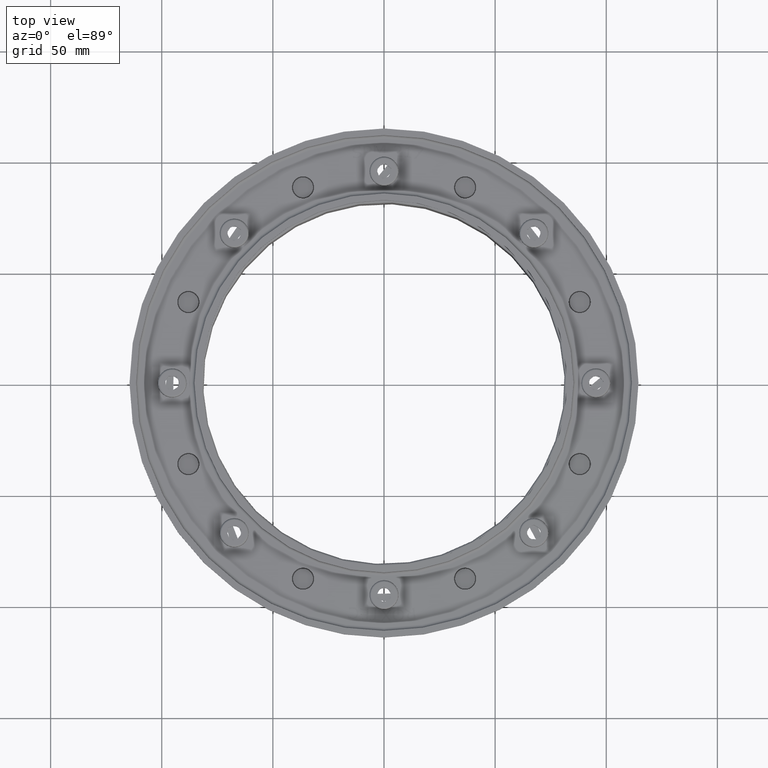
[diagram: clean part render]
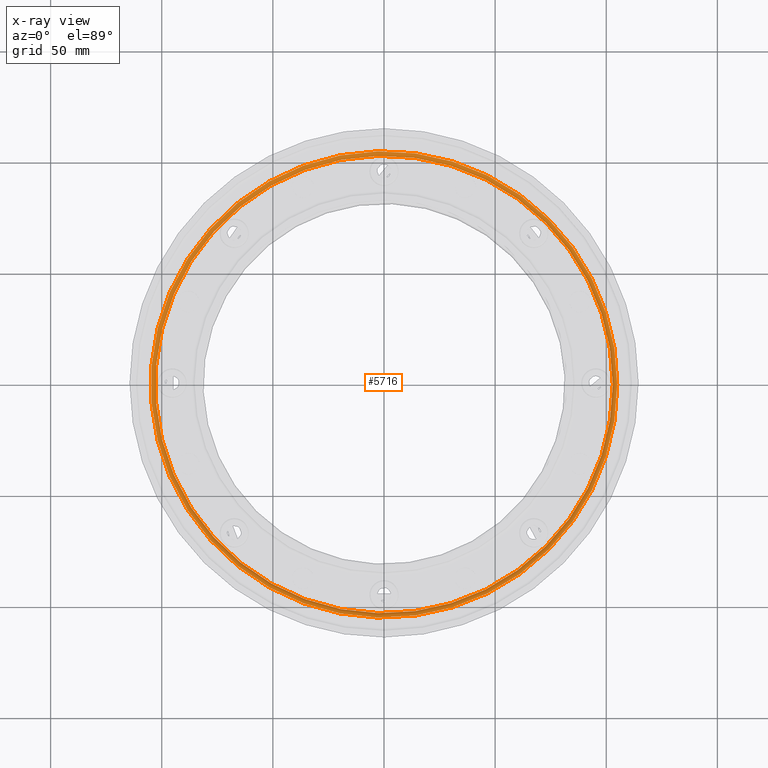
[diagram: x-ray — body ghosted, one internal face saturated and labeled with its STEP entity id]
A machine part, top view, then the same camera in x-ray: the body is ghosted and one INTERNAL B-rep face — a face not visible from any outside direction — is saturated and labeled: STEP entity #5716.
In plain terms, the highlighted toroidal blend (fillet) surface has major radius 104.939 mm and minor (blend) radius 2 mm.
Its self-contained STEP definition (entity closure, byte-faithful):
#539=TOROIDAL_SURFACE('',#6227,104.938918016272,2.);
#651=FACE_OUTER_BOUND('',#963,.T.);
#963=EDGE_LOOP('',(#4149,#4150,#4151,#4152,#4153,#4154));
#2341=CIRCLE('',#6228,104.938918016272);
#2342=CIRCLE('',#6229,2.);
#2343=CIRCLE('',#6230,102.946528620088);
#2344=CIRCLE('',#6231,102.946528620088);
#2345=CIRCLE('',#6232,104.938918016272);
#2589=VERTEX_POINT('',#8316);
#2590=VERTEX_POINT('',#8317);
#2591=VERTEX_POINT('',#8319);
#2592=VERTEX_POINT('',#8321);
#3205=EDGE_CURVE('',#2589,#2590,#2341,.T.);
#3206=EDGE_CURVE('',#2590,#2591,#2342,.T.);
#3207=EDGE_CURVE('',#2591,#2592,#2343,.T.);
#3208=EDGE_CURVE('',#2592,#2591,#2344,.T.);
#3209=EDGE_CURVE('',#2590,#2589,#2345,.T.);
#4149=ORIENTED_EDGE('',*,*,#3205,.T.);
#4150=ORIENTED_EDGE('',*,*,#3206,.T.);
#4151=ORIENTED_EDGE('',*,*,#3207,.T.);
#4152=ORIENTED_EDGE('',*,*,#3208,.T.);
#4153=ORIENTED_EDGE('',*,*,#3206,.F.);
#4154=ORIENTED_EDGE('',*,*,#3209,.T.);
#5716=ADVANCED_FACE('',(#651),#539,.F.);
#6227=AXIS2_PLACEMENT_3D('',#8315,#6883,#6884);
#6228=AXIS2_PLACEMENT_3D('',#8318,#6885,#6886);
#6229=AXIS2_PLACEMENT_3D('',#8320,#6887,#6888);
#6230=AXIS2_PLACEMENT_3D('',#8322,#6889,#6890);
#6231=AXIS2_PLACEMENT_3D('',#8323,#6891,#6892);
#6232=AXIS2_PLACEMENT_3D('',#8324,#6893,#6894);
#6883=DIRECTION('center_axis',(0.,0.,-1.));
#6884=DIRECTION('ref_axis',(-1.,0.,0.));
#6885=DIRECTION('center_axis',(0.,0.,-1.));
#6886=DIRECTION('ref_axis',(0.,1.,0.));
#6887=DIRECTION('center_axis',(-1.22464679914735E-16,-1.,0.));
#6888=DIRECTION('ref_axis',(1.,-1.22464679914735E-16,0.));
#6889=DIRECTION('center_axis',(0.,0.,1.));
#6890=DIRECTION('ref_axis',(6.12323399573677E-17,1.,0.));
#6891=DIRECTION('center_axis',(0.,0.,1.));
#6892=DIRECTION('ref_axis',(6.12323399573677E-17,1.,0.));
#6893=DIRECTION('center_axis',(0.,0.,-1.));
#6894=DIRECTION('ref_axis',(0.,1.,0.));
#8315=CARTESIAN_POINT('Origin',(0.,0.,5.99999999999999));
#8316=CARTESIAN_POINT('',(-1.28513110054614E-14,-104.938918016272,7.99999999999999));
#8317=CARTESIAN_POINT('',(104.938918016272,-1.28513110054614E-14,7.99999999999999));
#8318=CARTESIAN_POINT('Origin',(0.,0.,7.99999999999999));
#8319=CARTESIAN_POINT('',(102.946528620088,-1.26073136757923E-14,6.17431148549531));
#8320=CARTESIAN_POINT('Origin',(104.938918016272,-1.28513110054614E-14,
5.99999999999999));
#8321=CARTESIAN_POINT('',(-1.97215226305253E-30,-102.946528620088,6.17431148549531));
#8322=CARTESIAN_POINT('Origin',(-6.30365683789613E-15,0.,6.17431148549531));
#8323=CARTESIAN_POINT('Origin',(-6.30365683789613E-15,0.,6.17431148549531));
#8324=CARTESIAN_POINT('Origin',(0.,0.,7.99999999999999));